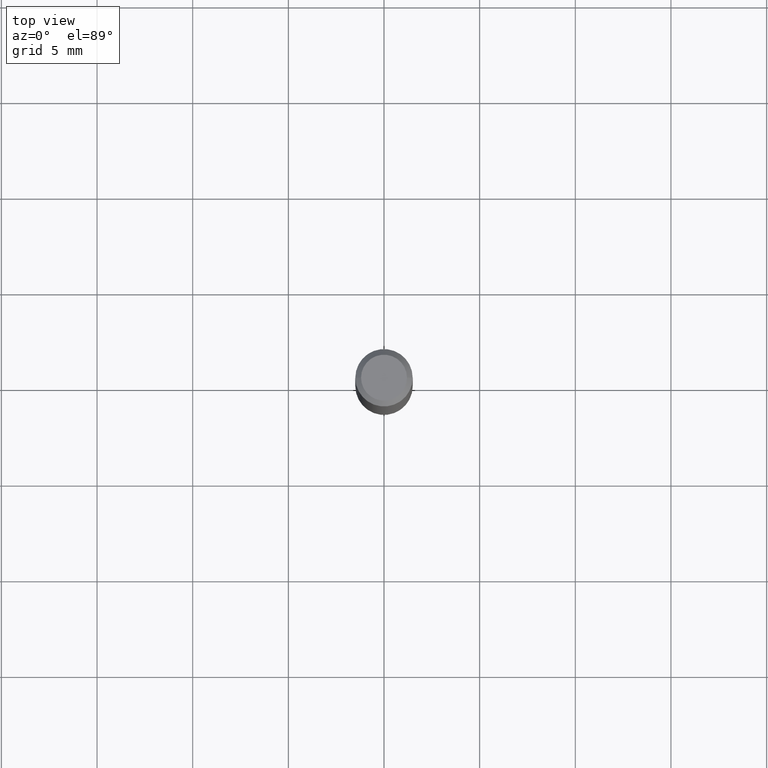
[diagram: clean part render]
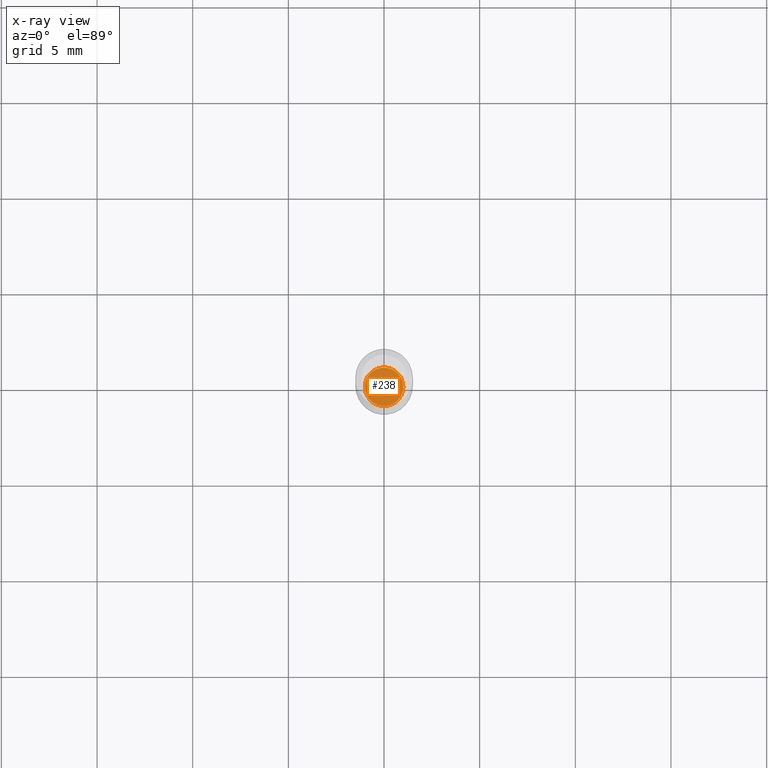
[diagram: x-ray — body ghosted, one internal face saturated and labeled with its STEP entity id]
A machine part, top view, then the same camera in x-ray: the body is ghosted and one INTERNAL B-rep face — a face not visible from any outside direction — is saturated and labeled: STEP entity #238.
In plain terms, the highlighted planar face has unit normal (-0, 0, 1).
Its self-contained STEP definition (entity closure, byte-faithful):
#10 = EDGE_LOOP ( 'NONE', ( #308, #248 ) ) ;
#20 = DIRECTION ( 'NONE',  ( 1.000000000000000000, -6.982962677686261189E-15, 0.000000000000000000 ) ) ;
#52 = CARTESIAN_POINT ( 'NONE',  ( 2.676565608369631794E-29, -3.821426325363822773E-15, -1.094499999999999806 ) ) ;
#93 = DIRECTION ( 'NONE',  ( 1.000000000000000000, -6.982962677686265922E-15, 4.876176775795935793E-29 ) ) ;
#116 = AXIS2_PLACEMENT_3D ( 'NONE', #436, #278, #93 ) ;
#124 = CIRCLE ( 'NONE', #223, 0.03964999999999999775 ) ;
#128 = CARTESIAN_POINT ( 'NONE',  ( 2.676565608369631794E-29, -3.821426325363822773E-15, -1.094499999999999806 ) ) ;
#132 = VERTEX_POINT ( 'NONE', #213 ) ;
#136 = VERTEX_POINT ( 'NONE', #177 ) ;
#177 = CARTESIAN_POINT ( 'NONE',  ( 0.03964999999999999775, -4.098300795534082706E-15, -1.094499999999999806 ) ) ;
#191 = EDGE_CURVE ( 'NONE', #136, #132, #124, .T. ) ;
#206 = DIRECTION ( 'NONE',  ( -2.445468806185136597E-29, 3.491481338843145583E-15, 1.000000000000000000 ) ) ;
#213 = CARTESIAN_POINT ( 'NONE',  ( -0.03964999999999999775, -3.537046903460831717E-15, -1.094499999999999806 ) ) ;
#223 = AXIS2_PLACEMENT_3D ( 'NONE', #128, #276, #480 ) ;
#227 = EDGE_CURVE ( 'NONE', #132, #136, #252, .T. ) ;
#238 = ADVANCED_FACE ( 'NONE', ( #329 ), #473, .F. ) ;
#248 = ORIENTED_EDGE ( 'NONE', *, *, #227, .F. ) ;
#252 = CIRCLE ( 'NONE', #477, 0.03964999999999999775 ) ;
#276 = DIRECTION ( 'NONE',  ( -2.445468806185136597E-29, 3.491481338843145583E-15, 1.000000000000000000 ) ) ;
#278 = DIRECTION ( 'NONE',  ( -2.438088387897960049E-29, 3.491481338843145188E-15, 1.000000000000000000 ) ) ;
#308 = ORIENTED_EDGE ( 'NONE', *, *, #191, .F. ) ;
#329 = FACE_OUTER_BOUND ( 'NONE', #10, .T. ) ;
#436 = CARTESIAN_POINT ( 'NONE',  ( 2.676565608369631794E-29, -3.821426325363822773E-15, -1.094499999999999806 ) ) ;
#473 = PLANE ( 'NONE',  #116 ) ;
#477 = AXIS2_PLACEMENT_3D ( 'NONE', #52, #206, #20 ) ;
#480 = DIRECTION ( 'NONE',  ( 1.000000000000000000, -6.982962677686261189E-15, 0.000000000000000000 ) ) ;